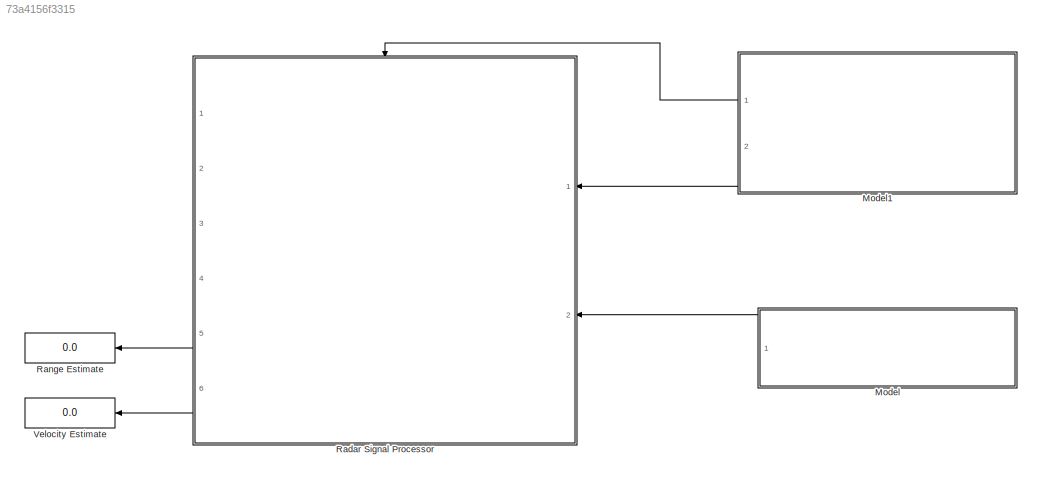
MODEL slx_73a4156f3315
KIND model
CONFIG AbsTol = auto
CONFIG EnableMultiTasking = off
CONFIG FixedStep = auto
CONFIG MaxStep = auto
CONFIG MinStep = auto
CONFIG RelTol = 1e-3
CONFIG SampleTimeConstraint = Unconstrained
CONFIG SolverName = VariableStepAuto
CONFIG StartTime = 0.0
CONFIG StopTime = stop_time
BLOCK [ModelReference] Model
  ModelNameDialog = FMCW_Target_Emulator_RevA.slx
  ModelReferenceVersion = 1.18
  Ports = [0, 1]
BLOCK [ModelReference] Model1
  ModelNameDialog = FMCW_chirp_generator_RevA.slx
  ModelReferenceVersion = 1.12
  Ports = [0, 2]
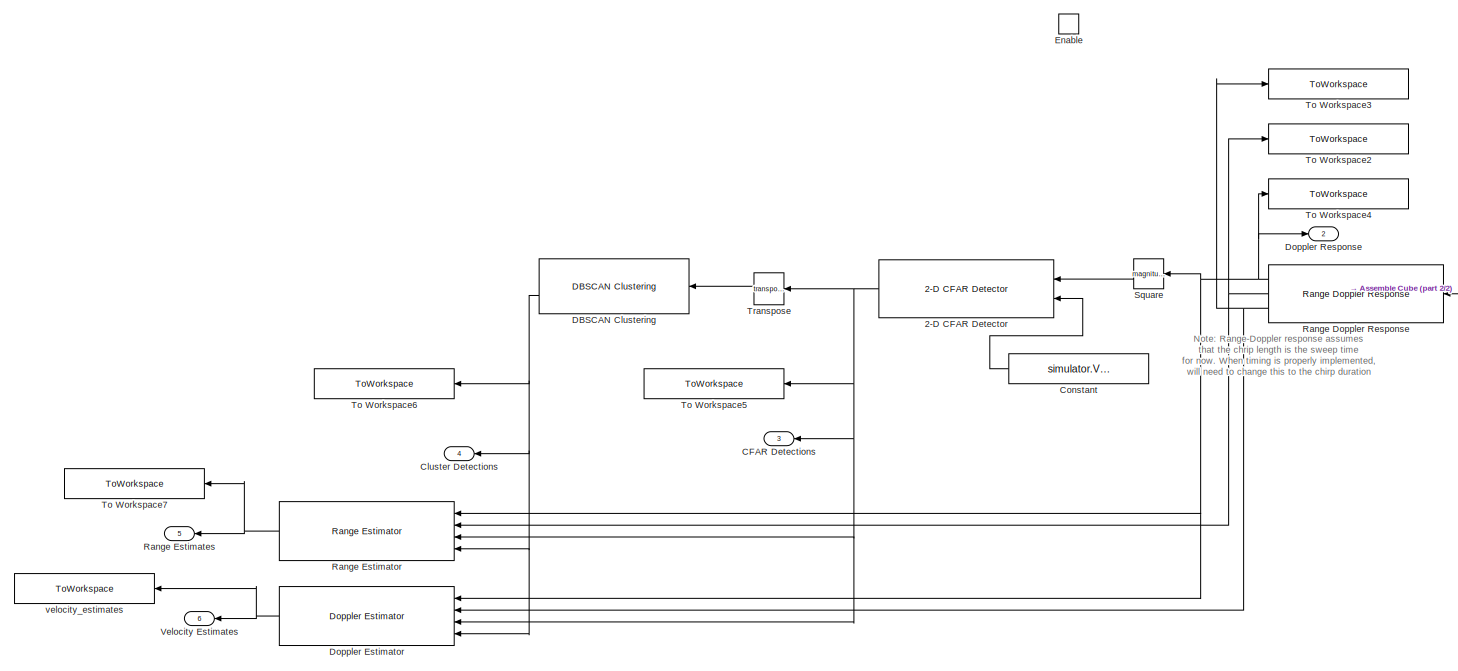
[diagram: Radar Signal Processor - part 1/2, left side, full height]
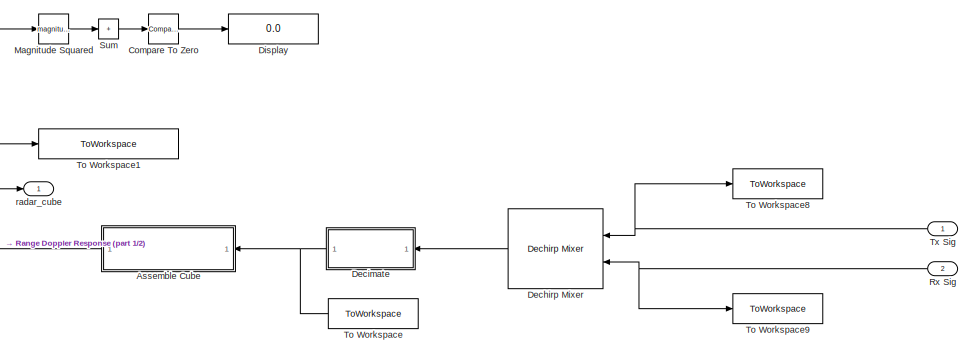
[diagram: Radar Signal Processor - part 2/2, middle right region]
BLOCK [SubSystem] Radar Signal Processor
  Ports = [2, 6, 1]
  RequestExecContextInheritance = off
BLOCK [Reference] Radar Signal Processor/2-D CFAR Detector  REF=phaseddetectlib/2-D CFAR Detector
  Ports = [2, 1]
  SourceBlock = phaseddetectlib/2-D CFAR Detector
  SourceProductBaseCode = AR
  SourceType = phased.CFARDetector2D
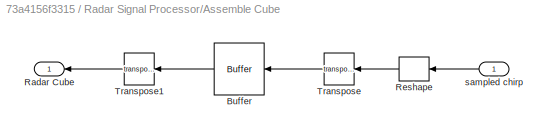
BLOCK [SubSystem] Radar Signal Processor/Assemble Cube
  Ports = [1, 1]
  RequestExecContextInheritance = off
BLOCK [Buffer] Radar Signal Processor/Assemble Cube/Buffer
  N = simulator.Victim.NumChirps
  OutputFrames = off
BLOCK [Outport] Radar Signal Processor/Assemble Cube/Radar Cube
BLOCK [Reshape] Radar Signal Processor/Assemble Cube/Reshape
  Ports = [1, 1]
BLOCK [Math] Radar Signal Processor/Assemble Cube/Transpose
  Operator = transpose
  Ports = [1, 1]
BLOCK [Math] Radar Signal Processor/Assemble Cube/Transpose1
  Operator = transpose
  Ports = [1, 1]
BLOCK [Inport] Radar Signal Processor/Assemble Cube/sampled chirp
BLOCK [Outport] Radar Signal Processor/CFAR Detections
  Port = 3
BLOCK [Outport] Radar Signal Processor/Cluster Detections
  Port = 4
BLOCK [Reference] Radar Signal Processor/Compare To Zero  REF=simulink/Logic and Bit
Operations/Compare
To Zero
  Ports = [1, 1]
  SourceBlock = simulink/Logic and Bit\nOperations/Compare\nTo Zero
  SourceProductBaseCode = SL
  SourceType = Compare To Zero
BLOCK [Constant] Radar Signal Processor/Constant
  Value = simulator.Victim.Radar_Signal_Processor.CUT_indicies
  VectorParams1D = off
BLOCK [Reference] Radar Signal Processor/DBSCAN Clustering  REF=radarlib/DBSCAN Clustering
  Ports = [1, 2]
  SourceBlock = radarlib/DBSCAN Clustering
  SourceProductBaseCode = RA
  SourceType = radar.internal.SimulinkClusterDBSCAN
BLOCK [Reference] Radar Signal Processor/Dechirp Mixer  REF=phaseddetectlib/Dechirp Mixer
  Ports = [2, 1]
  SourceBlock = phaseddetectlib/Dechirp Mixer
  SourceProductBaseCode = AR
  SourceType = Dechirp
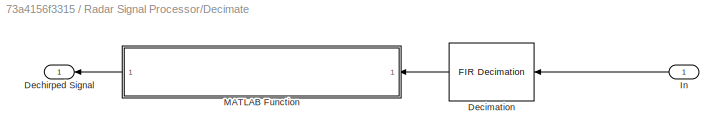
BLOCK [SubSystem] Radar Signal Processor/Decimate
  Ports = [1, 1]
  RequestExecContextInheritance = off
BLOCK [Outport] Radar Signal Processor/Decimate/Dechirped Signal
BLOCK [Reference] Radar Signal Processor/Decimate/Decimation  REF=dspmlti4/FIR
Decimation
  Ports = [1, 1]
  SourceBlock = dspmlti4/FIR\nDecimation
  SourceProductBaseCode = DS
  SourceType = FIR Decimation
  UserDataPersistent = on
BLOCK [Inport] Radar Signal Processor/Decimate/In
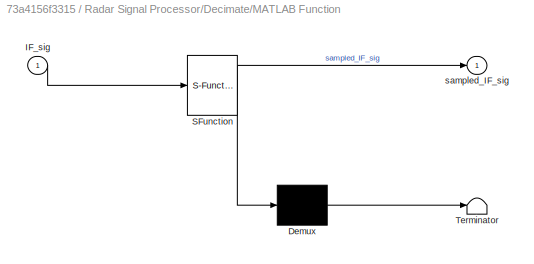
BLOCK [SubSystem] Radar Signal Processor/Decimate/MATLAB Function
  ErrorFcn = Stateflow.Translate.translate
  PermitHierarchicalResolution = ExplicitOnly
  Ports = [1, 1]
  RequestExecContextInheritance = off
  SFBlockType = MATLAB Function
  TreatAsAtomicUnit = on
BLOCK [Demux] Radar Signal Processor/Decimate/MATLAB Function/ Demux 
  Outputs = 1
  Ports = [1, 1]
BLOCK [S-Function] Radar Signal Processor/Decimate/MATLAB Function/ SFunction 
  EnableBusSupport = on
  FunctionName = sf_sfun
  Parameters = num_samples_in_sampling_period,num_samples_prior_to_sample_period
  PortCounts = [1 2]
  Ports = [1, 2]
  SFcnIsStateOwnerBlock = off
  SFunctionDeploymentMode = off
  Tag = Stateflow S-Function 2
BLOCK [Terminator] Radar Signal Processor/Decimate/MATLAB Function/ Terminator 
BLOCK [Inport] Radar Signal Processor/Decimate/MATLAB Function/IF_sig
BLOCK [Outport] Radar Signal Processor/Decimate/MATLAB Function/sampled_IF_sig
BLOCK [Display] Radar Signal Processor/Display
  Decimation = 1
  Ports = [1]
BLOCK [Reference] Radar Signal Processor/Doppler Estimator  REF=phaseddetectlib/Doppler Estimator
  Ports = [4, 1]
  SourceBlock = phaseddetectlib/Doppler Estimator
  SourceProductBaseCode = AR
  SourceType = phased.DopplerEstimator
BLOCK [Outport] Radar Signal Processor/Doppler Response
  Port = 2
BLOCK [EnablePort] Radar Signal Processor/Enable
  Ports = []
BLOCK [Math] Radar Signal Processor/Magnitude Squared
  Operator = magnitude^2
  Ports = [1, 1]
BLOCK [Reference] Radar Signal Processor/Range Doppler Response  REF=phaseddetectlib/Range Doppler Response
  Ports = [1, 3]
  SourceBlock = phaseddetectlib/Range Doppler Response
  SourceProductBaseCode = AR
  SourceType = phased.RangeDopplerResponse
BLOCK [Outport] Radar Signal Processor/Range Estimates
  Port = 5
BLOCK [Reference] Radar Signal Processor/Range Estimator  REF=phaseddetectlib/Range Estimator
  Ports = [4, 1]
  SourceBlock = phaseddetectlib/Range Estimator
  SourceProductBaseCode = AR
  SourceType = phased.RangeEstimator
BLOCK [Inport] Radar Signal Processor/Rx Sig
  Port = 2
BLOCK [Math] Radar Signal Processor/Square
  Operator = magnitude^2
  Ports = [1, 1]
BLOCK [Sum] Radar Signal Processor/Sum
  IconShape = rectangular
  Inputs = +
  Ports = [1, 1]
BLOCK [ToWorkspace] Radar Signal Processor/To Workspace
  FixptAsFi = on
  MaxDataPoints = 2
  Ports = [1]
  SampleTime = -1
  VariableName = sampled_IF_sig
BLOCK [ToWorkspace] Radar Signal Processor/To Workspace1
  FixptAsFi = on
  MaxDataPoints = 2
  Ports = [1]
  SampleTime = -1
  VariableName = radar_cube
BLOCK [ToWorkspace] Radar Signal Processor/To Workspace2
  FixptAsFi = on
  MaxDataPoints = 1
  Ports = [1]
  SampleTime = -1
  VariableName = rnggrid
BLOCK [ToWorkspace] Radar Signal Processor/To Workspace3
  FixptAsFi = on
  MaxDataPoints = 1
  Ports = [1]
  SampleTime = -1
  VariableName = dopgrid
BLOCK [ToWorkspace] Radar Signal Processor/To Workspace4
  FixptAsFi = on
  MaxDataPoints = 2
  Ports = [1]
  SampleTime = -1
  VariableName = resp
BLOCK [ToWorkspace] Radar Signal Processor/To Workspace5
  FixptAsFi = on
  MaxDataPoints = 2
  Ports = [1]
  SampleTime = -1
  VariableName = detections
BLOCK [ToWorkspace] Radar Signal Processor/To Workspace6
  FixptAsFi = on
  MaxDataPoints = 2
  Ports = [1]
  SampleTime = -1
  VariableName = idx
BLOCK [ToWorkspace] Radar Signal Processor/To Workspace7
  FixptAsFi = on
  MaxDataPoints = 2
  Ports = [1]
  SampleTime = -1
  VariableName = rngest
BLOCK [ToWorkspace] Radar Signal Processor/To Workspace8
  FixptAsFi = on
  MaxDataPoints = 2
  Ports = [1]
  SampleTime = -1
  VariableName = Tx_sig
BLOCK [ToWorkspace] Radar Signal Processor/To Workspace9
  FixptAsFi = on
  MaxDataPoints = 2
  Ports = [1]
  SampleTime = -1
  VariableName = Rx_sig
BLOCK [Math] Radar Signal Processor/Transpose
  Operator = transpose
  Ports = [1, 1]
BLOCK [Inport] Radar Signal Processor/Tx Sig
BLOCK [Outport] Radar Signal Processor/Velocity Estimates
  Port = 6
BLOCK [Outport] Radar Signal Processor/radar_cube
BLOCK [ToWorkspace] Radar Signal Processor/velocity_estimates
  FixptAsFi = on
  MaxDataPoints = 2
  Ports = [1]
  SampleTime = -1
  VariableName = dopest
BLOCK [Display] Range Estimate
  Decimation = 1
  Ports = [1]
BLOCK [Display] Velocity Estimate
  Decimation = 1
  Ports = [1]
ANNOTATION Radar Signal Processor: Note: Range-Doppler response assumes that the chrip length is the sweep time for now. When timing is properly implemented, will need to change this to the chirp duration
LINE Model1:1 -> Radar Signal Processor:enable
LINE Model1:2 -> Radar Signal Processor:1
LINE Model:1 -> Radar Signal Processor:2
NET Radar Signal Processor/2-D CFAR Detector:1 -> Radar Signal Processor/CFAR Detections:1, Radar Signal Processor/Doppler Estimator:3, Radar Signal Processor/Range Estimator:3, Radar Signal Processor/To Workspace5:1, Radar Signal Processor/Transpose:1
LINE Radar Signal Processor/Assemble Cube/Buffer:1 -> Radar Signal Processor/Assemble Cube/Transpose1:1
LINE Radar Signal Processor/Assemble Cube/Reshape:1 -> Radar Signal Processor/Assemble Cube/Transpose:1
LINE Radar Signal Processor/Assemble Cube/Transpose1:1 -> Radar Signal Processor/Assemble Cube/Radar Cube:1
LINE Radar Signal Processor/Assemble Cube/Transpose:1 -> Radar Signal Processor/Assemble Cube/Buffer:1
LINE Radar Signal Processor/Assemble Cube/sampled chirp:1 -> Radar Signal Processor/Assemble Cube/Reshape:1
NET Radar Signal Processor/Assemble Cube:1 -> Radar Signal Processor/Magnitude Squared:1, Radar Signal Processor/Range Doppler Response:1, Radar Signal Processor/To Workspace1:1, Radar Signal Processor/radar_cube:1
LINE Radar Signal Processor/Compare To Zero:1 -> Radar Signal Processor/Display:1
LINE Radar Signal Processor/Constant:1 -> Radar Signal Processor/2-D CFAR Detector:2
NET Radar Signal Processor/DBSCAN Clustering:2 -> Radar Signal Processor/Cluster Detections:1, Radar Signal Processor/Doppler Estimator:4, Radar Signal Processor/Range Estimator:4, Radar Signal Processor/To Workspace6:1
LINE Radar Signal Processor/Dechirp Mixer:1 -> Radar Signal Processor/Decimate:1
LINE Radar Signal Processor/Decimate/Decimation:1 -> Radar Signal Processor/Decimate/MATLAB Function:1
LINE Radar Signal Processor/Decimate/In:1 -> Radar Signal Processor/Decimate/Decimation:1
LINE Radar Signal Processor/Decimate/MATLAB Function:1 -> Radar Signal Processor/Decimate/Dechirped Signal:1
NET Radar Signal Processor/Decimate:1 -> Radar Signal Processor/Assemble Cube:1, Radar Signal Processor/To Workspace:1
NET Radar Signal Processor/Doppler Estimator:1 -> Radar Signal Processor/Velocity Estimates:1, Radar Signal Processor/velocity_estimates:1
LINE Radar Signal Processor/Magnitude Squared:1 -> Radar Signal Processor/Sum:1
NET Radar Signal Processor/Range Doppler Response:1 -> Radar Signal Processor/Doppler Estimator:1, Radar Signal Processor/Doppler Response:1, Radar Signal Processor/Range Estimator:1, Radar Signal Processor/Square:1, Radar Signal Processor/To Workspace4:1
NET Radar Signal Processor/Range Doppler Response:2 -> Radar Signal Processor/Range Estimator:2, Radar Signal Processor/To Workspace2:1
NET Radar Signal Processor/Range Doppler Response:3 -> Radar Signal Processor/Doppler Estimator:2, Radar Signal Processor/To Workspace3:1
NET Radar Signal Processor/Range Estimator:1 -> Radar Signal Processor/Range Estimates:1, Radar Signal Processor/To Workspace7:1
NET Radar Signal Processor/Rx Sig:1 -> Radar Signal Processor/Dechirp Mixer:2, Radar Signal Processor/To Workspace9:1
LINE Radar Signal Processor/Square:1 -> Radar Signal Processor/2-D CFAR Detector:1
LINE Radar Signal Processor/Sum:1 -> Radar Signal Processor/Compare To Zero:1
LINE Radar Signal Processor/Transpose:1 -> Radar Signal Processor/DBSCAN Clustering:1
NET Radar Signal Processor/Tx Sig:1 -> Radar Signal Processor/Dechirp Mixer:1, Radar Signal Processor/To Workspace8:1
LINE Radar Signal Processor:5 -> Range Estimate:1
LINE Radar Signal Processor:6 -> Velocity Estimate:1
note: NET lines group one-source signal fan-out (src -> all destinations, sorted); 1:1 wires keep LINE
CHART Radar Signal Processor/Decimate/MATLAB Function states=1 transitions=1
  STATE_LABEL 'eML_blk_kernel()'
  STATE_LABEL 'SCRIPT:\nfunction sampled_IF_sig = select_sampled_IF_sig(IF_sig,num_samples_prior_to_sample_period,num_samples_in_sampling_period)\n\n    sampled_IF_sig = IF_sig(...\n        num_samples_prior_to_sample_period + 1:...\n        num_samples_prior_to_sample_period + num_samples_in_sampling_period);'
CHART  states=0 transitions=0
